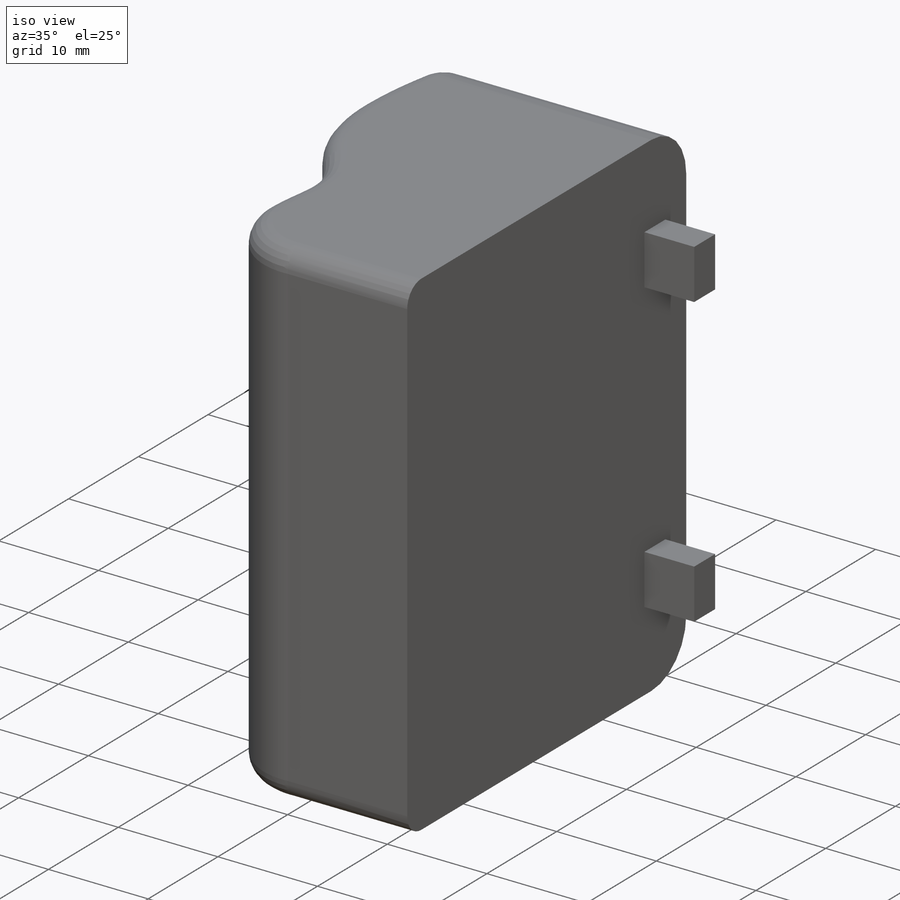
[diagram: iso view]
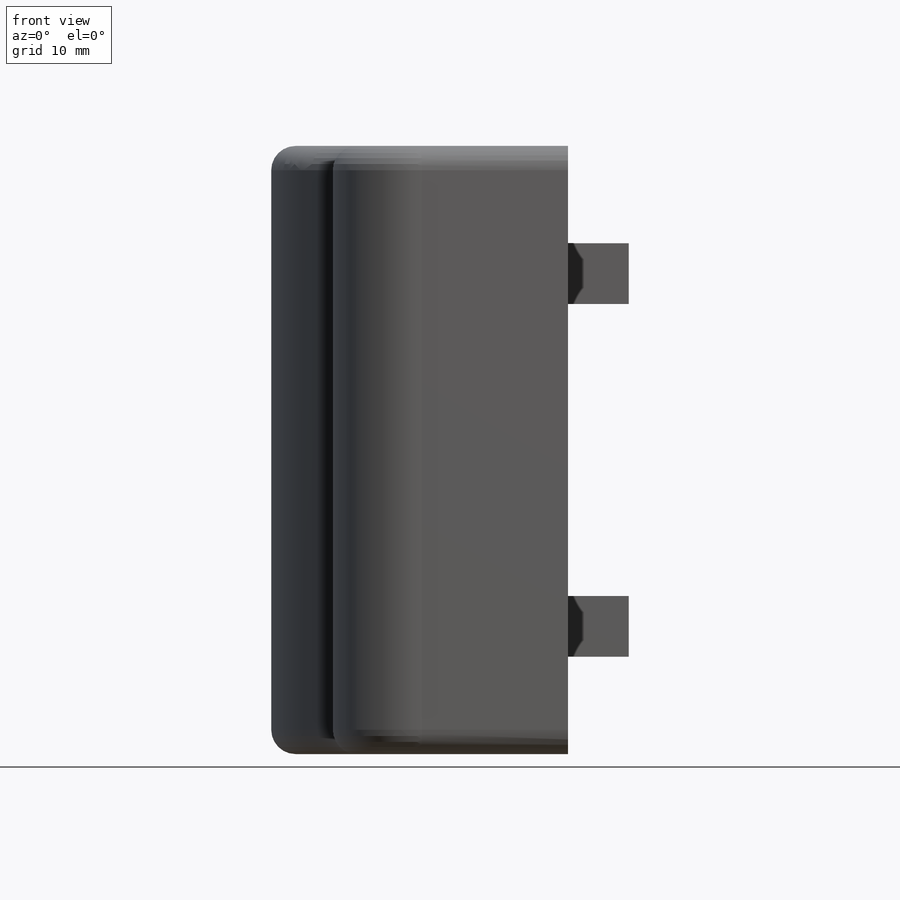
[diagram: front view]
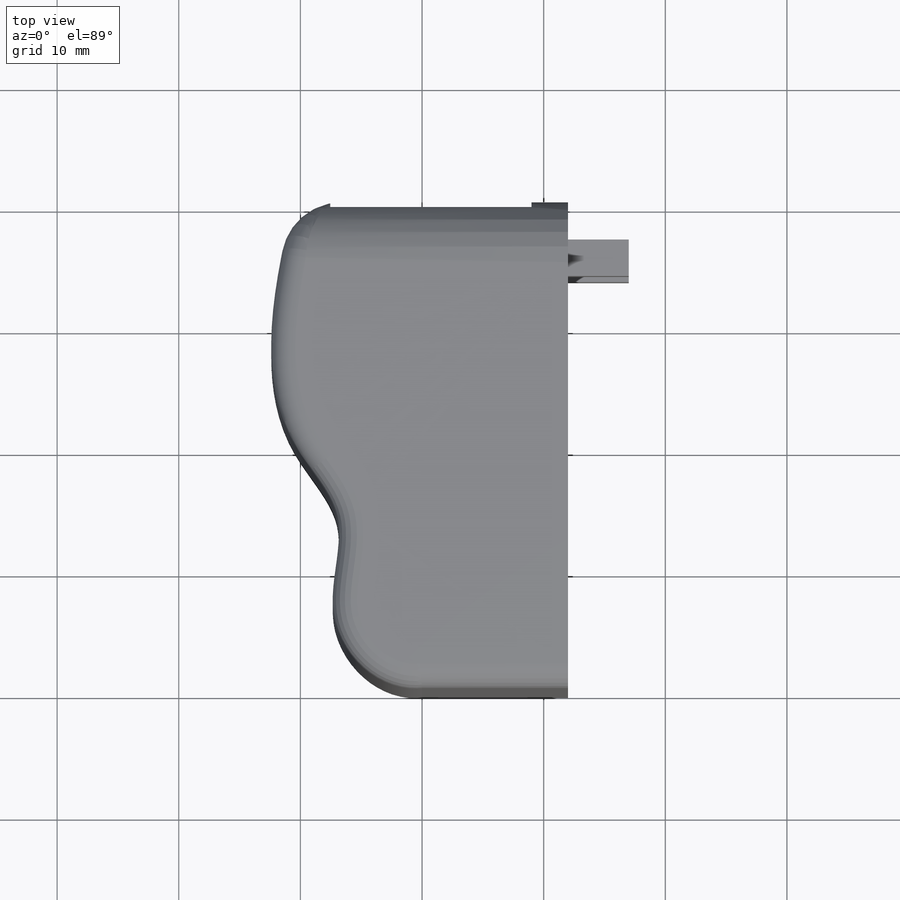
[diagram: top view]
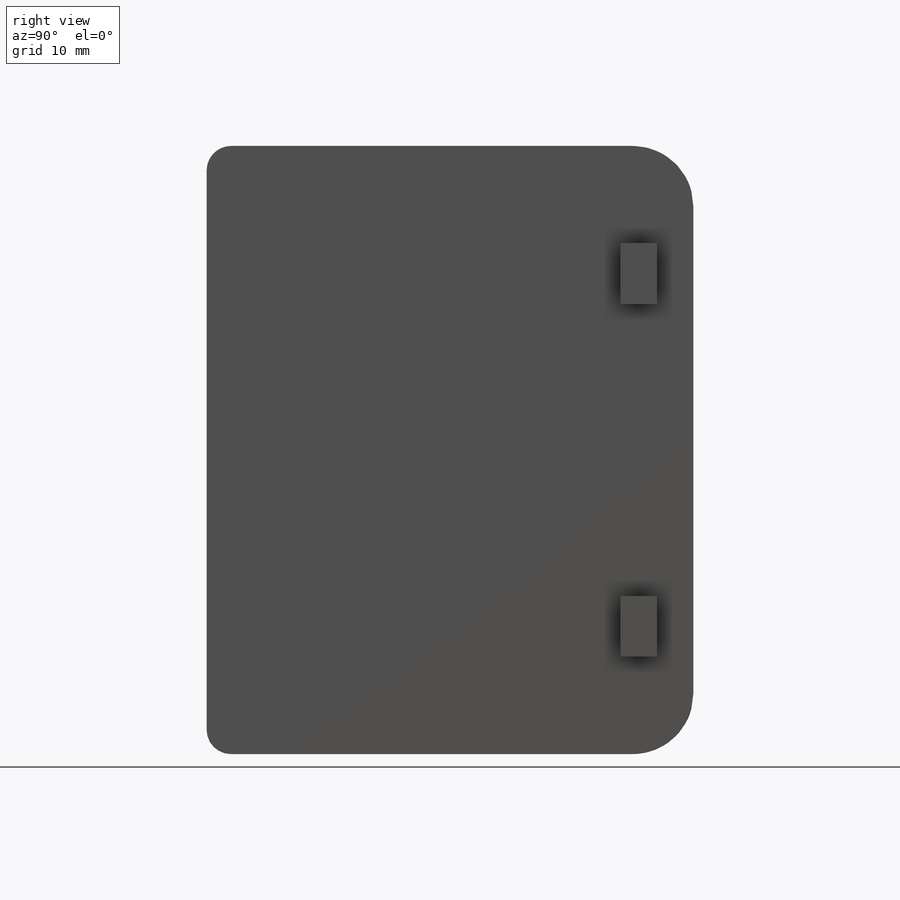
[diagram: right view]
SOLIDWORKS PART (.sldprt)
format: sldprt  version: not decoded by parser v0  size: 227,328 bytes
history: native  units: mm
features: plane x3, sketch x2, extrude x2, fillet x2, material x1, shell x1 (+10 scaffold rows collapsed)
feature tree (21):
  scaffold x10  (default folders/planes/origin — collapsed)
  material  "Matériau <non spécifié>"
  plane  "Plan de face"
  plane  "Plan de dessus"
  plane  "Plan de droite"
  sketch  "Esquisse1"  dims[D1=40.0mm D2=12.0mm]
  extrude  "Boss.-Extru.1"  Depth=50mm
  shell  "Coque1"  Thickness=3mm
  fillet  "Congé2"  Radius=5mm
  fillet  "Congé3"  Radius=2mm
  sketch  "Esquisse2"  dims[D1=5.0mm D2=5.0mm D3=3.0mm D4=3.0mm D5=3.0mm D6=3.0mm D7=8.0mm D8=8.0mm D9=3.0mm]
  extrude  "Boss.-Extru.2"  Depth=5mm
decode coverage: 7 of 7 modeling features carry decoded parameters
note: suppression state not decoded; provenance and decode notes live in map.json
